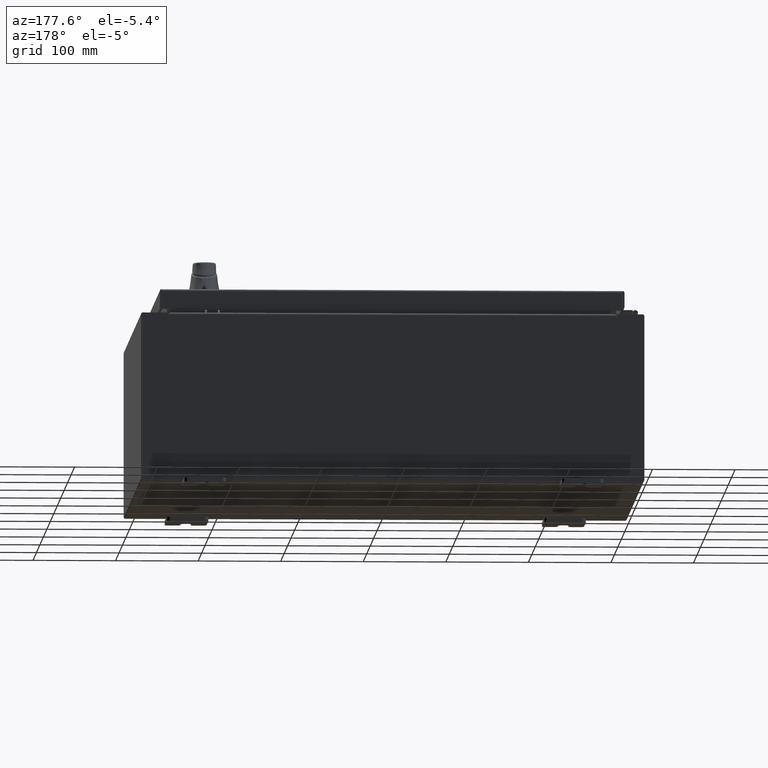
[diagram: clean part render]
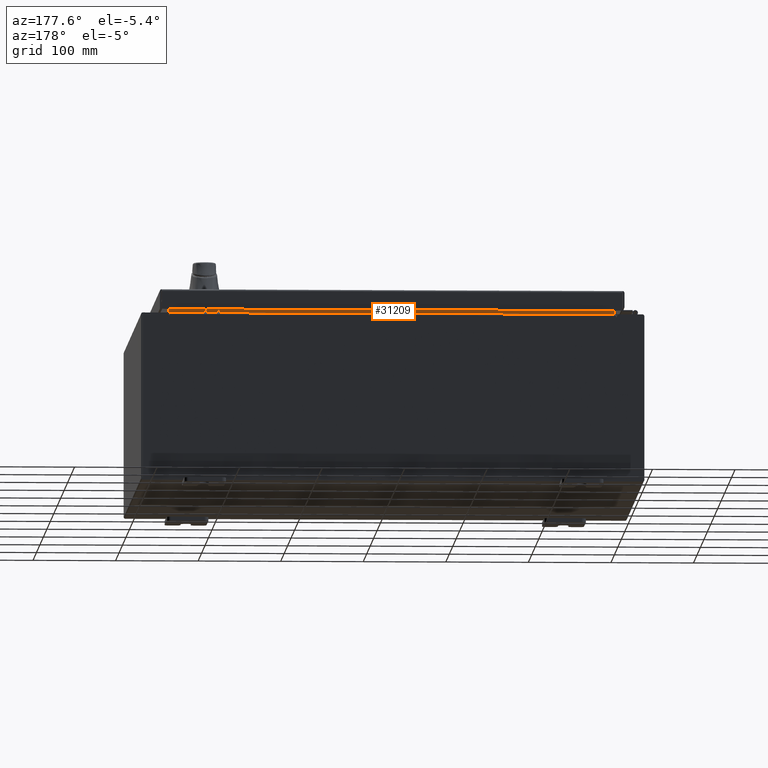
[diagram: same view with one face highlighted and labeled with its STEP entity id]
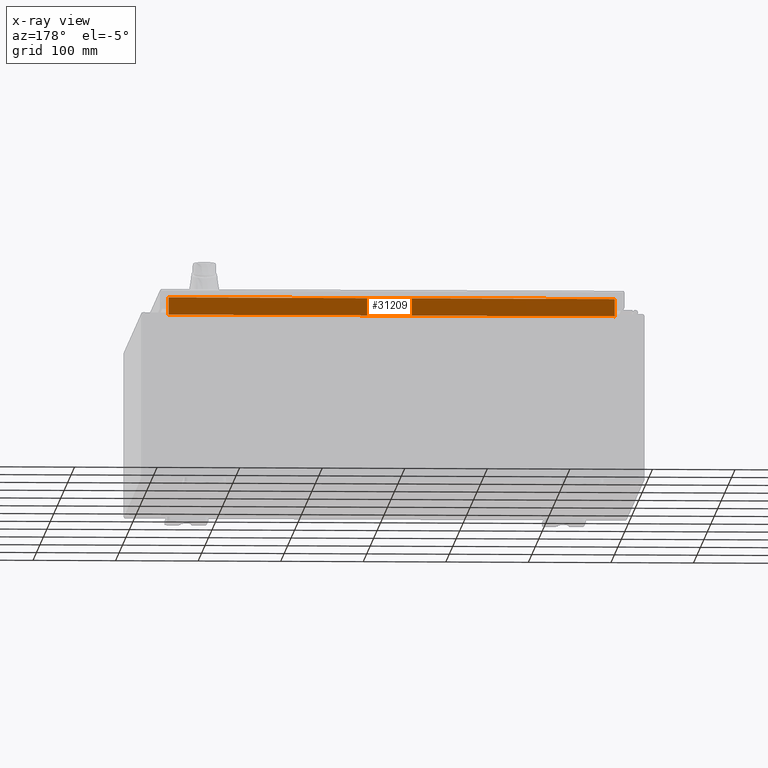
[diagram: x-ray of the same camera — body ghosted, the highlighted face saturated]
A machine part, auxiliary view. The second image highlights one B-rep face of the part: STEP entity #31209.
The next image is the same camera in x-ray: the body ghosted, the highlighted face saturated — about 0% of this face is hidden behind the body in this view.
In plain terms, the highlighted planar face has unit normal (0, 1, 0).
Its self-contained STEP definition (entity closure, byte-faithful):
#5407 = VECTOR ( 'NONE', #59129, 39.37007874015748100 ) ;
#11276 = LINE ( 'NONE', #100722, #53436 ) ;
#15721 = CARTESIAN_POINT ( 'NONE',  ( 10.63720000000000200, -1.300299999999999800, 4.925300000000004500 ) ) ;
#24957 = CARTESIAN_POINT ( 'NONE',  ( 0.0000000000000000000, -1.300299999999999800, 0.0000000000000000000 ) ) ;
#25340 = DIRECTION ( 'NONE',  ( 0.0000000000000000000, -0.0000000000000000000, 1.000000000000000000 ) ) ;
#29408 = FACE_OUTER_BOUND ( 'NONE', #38109, .T. ) ;
#31209 = ADVANCED_FACE ( 'NONE', ( #29408 ), #109354, .T. ) ;
#32720 = DIRECTION ( 'NONE',  ( -0.0000000000000000000, -0.0000000000000000000, 1.000000000000000000 ) ) ;
#38109 = EDGE_LOOP ( 'NONE', ( #73135, #91060, #53859, #90656 ) ) ;
#39185 = DIRECTION ( 'NONE',  ( 1.000000000000000000, 0.0000000000000000000, -2.568202152506545800E-017 ) ) ;
#39252 = VERTEX_POINT ( 'NONE', #44641 ) ;
#44639 = VECTOR ( 'NONE', #39185, 39.37007874015748100 ) ;
#44641 = CARTESIAN_POINT ( 'NONE',  ( -10.63720000000000400, -1.300299999999999800, 4.013000000000003500 ) ) ;
#45100 = AXIS2_PLACEMENT_3D ( 'NONE', #24957, #75753, #25340 ) ;
#45767 = VERTEX_POINT ( 'NONE', #77774 ) ;
#48483 = CARTESIAN_POINT ( 'NONE',  ( -10.63720000000000200, -1.300299999999999300, 4.837600000000003700 ) ) ;
#51847 = VERTEX_POINT ( 'NONE', #57682 ) ;
#52588 = EDGE_CURVE ( 'NONE', #74923, #39252, #11276, .T. ) ;
#53436 = VECTOR ( 'NONE', #84100, 39.37007874015748100 ) ;
#53859 = ORIENTED_EDGE ( 'NONE', *, *, #64703, .F. ) ;
#57084 = EDGE_CURVE ( 'NONE', #51847, #74923, #72653, .T. ) ;
#57682 = CARTESIAN_POINT ( 'NONE',  ( 10.63720000000000200, -1.300299999999999800, 4.837600000000003700 ) ) ;
#59129 = DIRECTION ( 'NONE',  ( -1.000000000000000000, -0.0000000000000000000, -0.0000000000000000000 ) ) ;
#61503 = LINE ( 'NONE', #15721, #78643 ) ;
#64703 = EDGE_CURVE ( 'NONE', #45767, #51847, #61503, .T. ) ;
#70234 = EDGE_CURVE ( 'NONE', #39252, #45767, #89344, .T. ) ;
#72653 = LINE ( 'NONE', #101153, #5407 ) ;
#73135 = ORIENTED_EDGE ( 'NONE', *, *, #52588, .F. ) ;
#74923 = VERTEX_POINT ( 'NONE', #48483 ) ;
#75753 = DIRECTION ( 'NONE',  ( 0.0000000000000000000, 1.000000000000000000, 0.0000000000000000000 ) ) ;
#77774 = CARTESIAN_POINT ( 'NONE',  ( 10.63720000000000400, -1.300299999999999800, 4.013000000000003500 ) ) ;
#78643 = VECTOR ( 'NONE', #32720, 39.37007874015748100 ) ;
#84100 = DIRECTION ( 'NONE',  ( -0.0000000000000000000, -0.0000000000000000000, -1.000000000000000000 ) ) ;
#89344 = LINE ( 'NONE', #89576, #44639 ) ;
#89576 = CARTESIAN_POINT ( 'NONE',  ( -10.63720000000000200, -1.300299999999999800, 4.013000000000003500 ) ) ;
#90656 = ORIENTED_EDGE ( 'NONE', *, *, #70234, .F. ) ;
#91060 = ORIENTED_EDGE ( 'NONE', *, *, #57084, .F. ) ;
#100722 = CARTESIAN_POINT ( 'NONE',  ( -10.63720000000000200, -1.300299999999999800, 4.000000000000004400 ) ) ;
#101153 = CARTESIAN_POINT ( 'NONE',  ( 10.63720000000000200, -1.300299999999999300, 4.837600000000003700 ) ) ;
#109354 = PLANE ( 'NONE',  #45100 ) ;